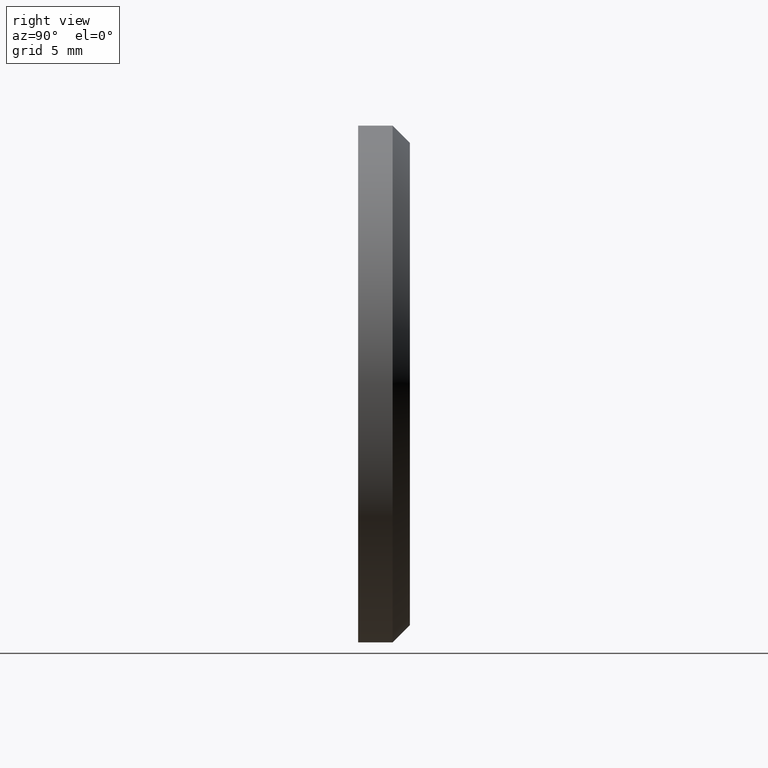
[diagram: clean part render]
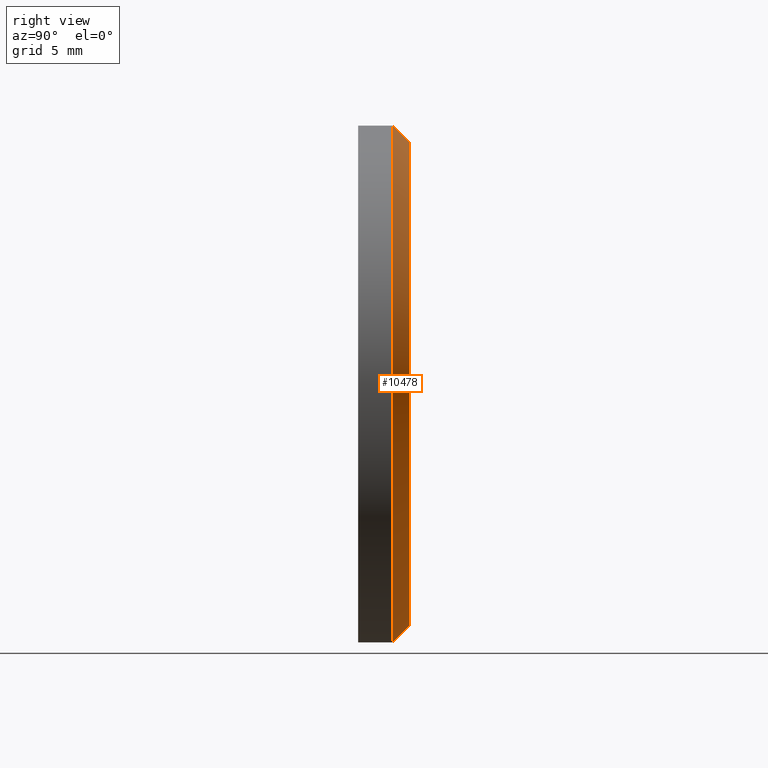
[diagram: same view with one face highlighted and labeled with its STEP entity id]
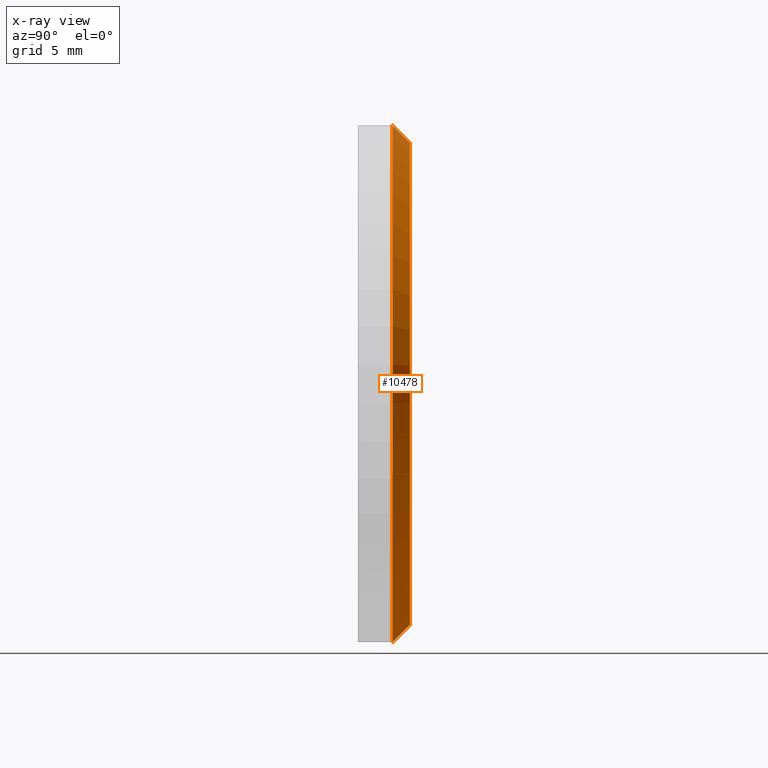
[diagram: x-ray of the same camera — body ghosted, the highlighted face saturated]
A machine part, right view. The second image highlights one B-rep face of the part: STEP entity #10478.
The next image is the same camera in x-ray: the body ghosted, the highlighted face saturated — about 0% of this face is hidden behind the body in this view.
In plain terms, the highlighted conical surface has half-angle 45 deg.
Its self-contained STEP definition (entity closure, byte-faithful):
#140 = AXIS2_PLACEMENT_3D ( 'NONE', #5800, #9154, #2404 ) ;
#169 = ORIENTED_EDGE ( 'NONE', *, *, #4217, .T. ) ;
#323 = CARTESIAN_POINT ( 'NONE',  ( 1.775737858763662015E-15, 3.000000000000000000, 13.99999999999999645 ) ) ;
#585 = DIRECTION ( 'NONE',  ( 0.000000000000000000, -1.000000000000000000, 0.000000000000000000 ) ) ;
#590 = CARTESIAN_POINT ( 'NONE',  ( 0.000000000000000000, 3.000000000000000000, 0.000000000000000000 ) ) ;
#1489 = CARTESIAN_POINT ( 'NONE',  ( 0.000000000000000000, 1.999999999999999112, -15.00000000000000000 ) ) ;
#1834 = DIRECTION ( 'NONE',  ( 0.000000000000000000, 0.000000000000000000, 1.000000000000000000 ) ) ;
#2404 = DIRECTION ( 'NONE',  ( 0.000000000000000000, 0.000000000000000000, -1.000000000000000000 ) ) ;
#2518 = VERTEX_POINT ( 'NONE', #323 ) ;
#2930 = VECTOR ( 'NONE', #5071, 999.9999999999998863 ) ;
#4173 = FACE_OUTER_BOUND ( 'NONE', #8588, .T. ) ;
#4214 = CARTESIAN_POINT ( 'NONE',  ( 0.000000000000000000, 1.999999999999999112, 0.000000000000000000 ) ) ;
#4217 = EDGE_CURVE ( 'NONE', #2518, #12076, #12199, .T. ) ;
#4242 = VERTEX_POINT ( 'NONE', #1489 ) ;
#4631 = EDGE_CURVE ( 'NONE', #8586, #4242, #11836, .T. ) ;
#5057 = EDGE_CURVE ( 'NONE', #2518, #8586, #14675, .T. ) ;
#5071 = DIRECTION ( 'NONE',  ( 8.659560562354941486E-17, -0.7071067811865469066, 0.7071067811865482389 ) ) ;
#5800 = CARTESIAN_POINT ( 'NONE',  ( 0.000000000000000000, 3.000000000000000000, 0.000000000000000000 ) ) ;
#6773 = AXIS2_PLACEMENT_3D ( 'NONE', #590, #11935, #1834 ) ;
#6842 = CARTESIAN_POINT ( 'NONE',  ( 0.000000000000000000, 3.000000000000000000, -13.99999999999999645 ) ) ;
#7276 = CARTESIAN_POINT ( 'NONE',  ( 1.714505518806294244E-15, 3.000000000000000000, 13.99999999999999645 ) ) ;
#8259 = AXIS2_PLACEMENT_3D ( 'NONE', #4214, #585, #8568 ) ;
#8369 = DIRECTION ( 'NONE',  ( 0.000000000000000000, -0.7071067811865469066, -0.7071067811865482389 ) ) ;
#8568 = DIRECTION ( 'NONE',  ( 0.000000000000000000, 0.000000000000000000, 1.000000000000000000 ) ) ;
#8586 = VERTEX_POINT ( 'NONE', #6842 ) ;
#8588 = EDGE_LOOP ( 'NONE', ( #13965, #169, #10794, #13184 ) ) ;
#8870 = CARTESIAN_POINT ( 'NONE',  ( 1.836970198721029589E-15, 1.999999999999999112, 15.00000000000000000 ) ) ;
#9154 = DIRECTION ( 'NONE',  ( 0.000000000000000000, -1.000000000000000000, 0.000000000000000000 ) ) ;
#9498 = CARTESIAN_POINT ( 'NONE',  ( 0.000000000000000000, 3.000000000000000000, -13.99999999999999645 ) ) ;
#10085 = VECTOR ( 'NONE', #8369, 999.9999999999998863 ) ;
#10478 = ADVANCED_FACE ( 'NONE', ( #4173 ), #13429, .T. ) ;
#10794 = ORIENTED_EDGE ( 'NONE', *, *, #11773, .F. ) ;
#11773 = EDGE_CURVE ( 'NONE', #4242, #12076, #12171, .T. ) ;
#11836 = LINE ( 'NONE', #9498, #10085 ) ;
#11935 = DIRECTION ( 'NONE',  ( 0.000000000000000000, 1.000000000000000000, 0.000000000000000000 ) ) ;
#12076 = VERTEX_POINT ( 'NONE', #8870 ) ;
#12171 = CIRCLE ( 'NONE', #8259, 15.00000000000000000 ) ;
#12199 = LINE ( 'NONE', #7276, #2930 ) ;
#13184 = ORIENTED_EDGE ( 'NONE', *, *, #4631, .F. ) ;
#13429 = CONICAL_SURFACE ( 'NONE', #140, 13.99999999999999645, 0.7853981633974491672 ) ;
#13965 = ORIENTED_EDGE ( 'NONE', *, *, #5057, .F. ) ;
#14675 = CIRCLE ( 'NONE', #6773, 13.99999999999999645 ) ;